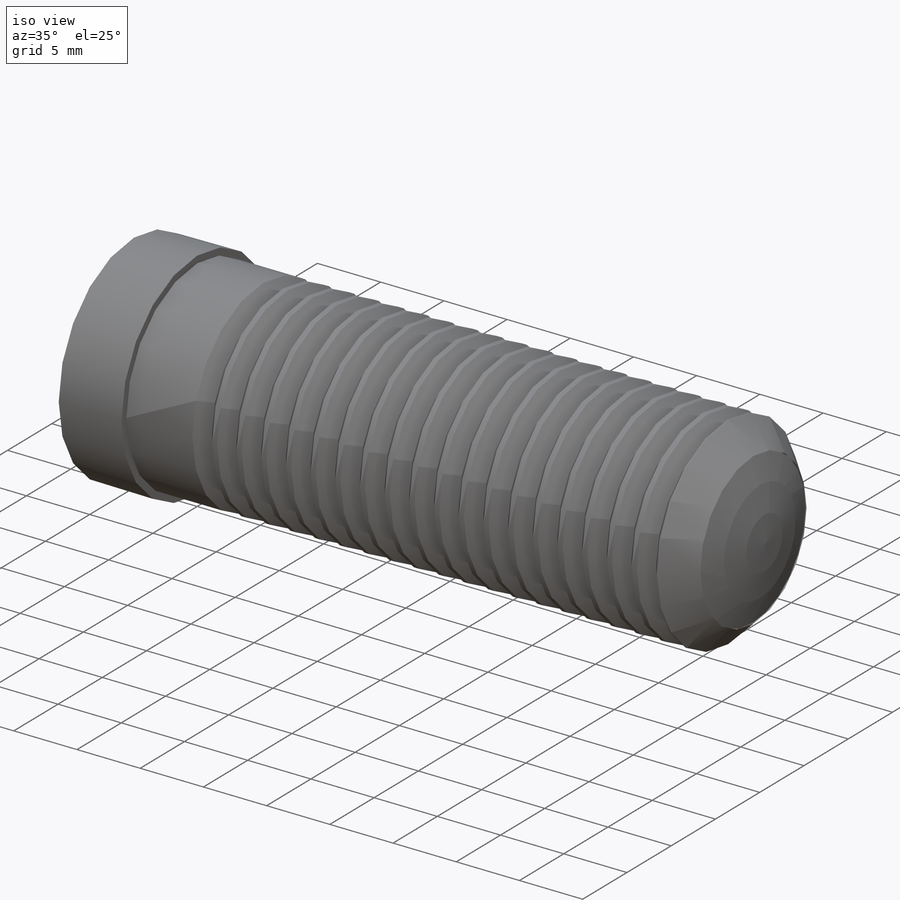
[diagram: iso view]
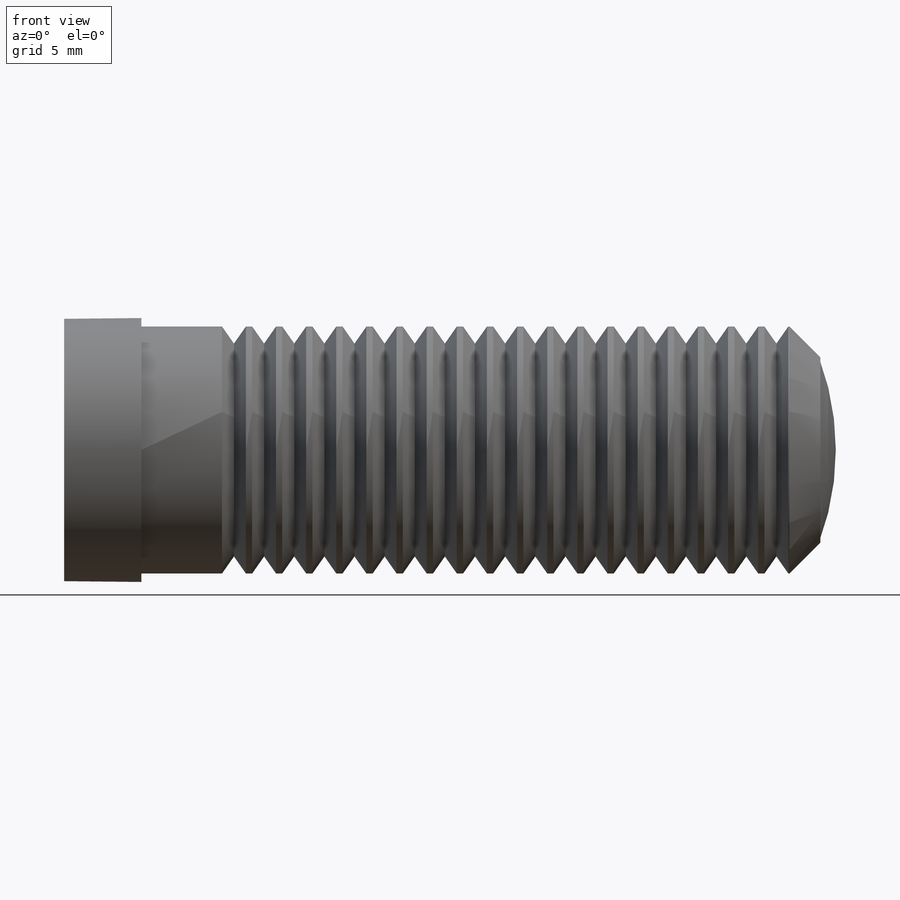
[diagram: front view]
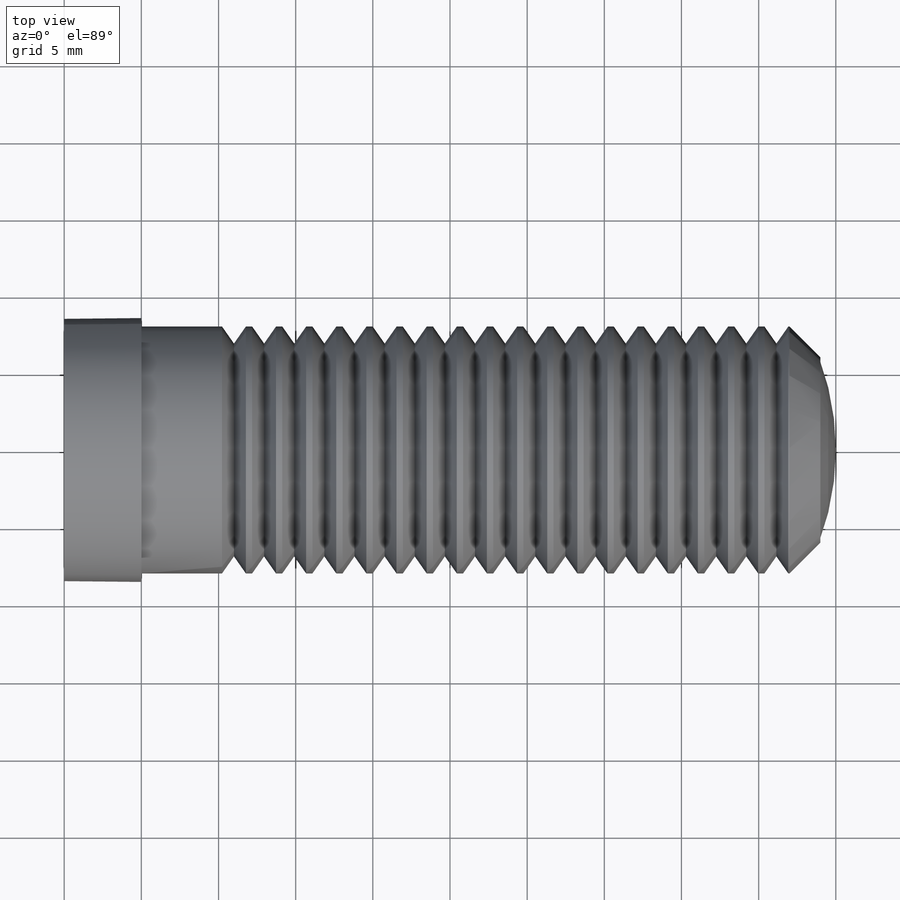
[diagram: top view]
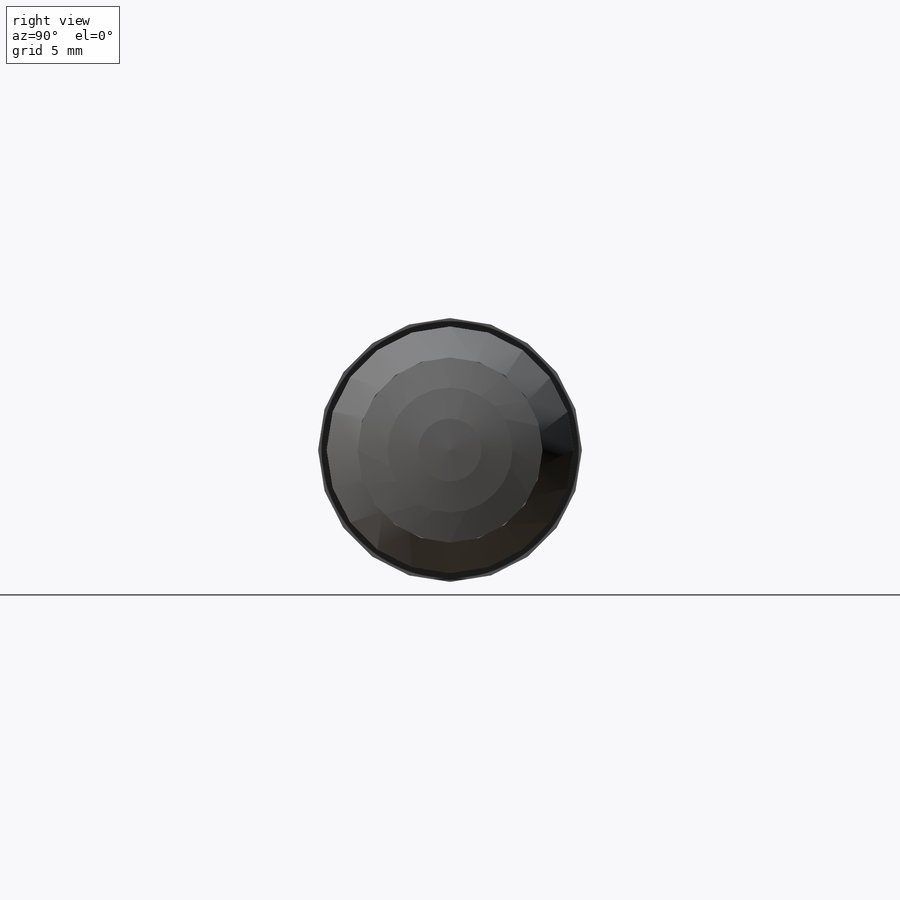
[diagram: right view]
SOLIDWORKS PART (.sldprt)
format: sldprt  version: not decoded by parser v0  size: 339,968 bytes
history: native  units: mm
features: sketch x3, material x1, revolve x1, thread x1, cut_revolve x1, pattern_linear x1, plane x1 (+15 scaffold rows collapsed; 1 parser-record rows omitted)
feature tree (25):
  parser-record x1  (decoder bookkeeping rows leaked as tree rows — omitted from the tree; the rows remain in map.json)
  scaffold x15  (default folders/planes/origin — collapsed)
  material  "Material <not specified>"
  sketch  "BodySke"  dims[c1.D1=20.0mm c1.Head_rad=17.0mm c1.Length=50.0mm c1.Diameter=17.0mm c1.Thread_dia=16.0mm c1.Thread_len=39.0mm c1.Thread_clr=6.0mm c1.Head_dia=12.0mm c1.Head_ht=1.0mm c2.D1=~28.973275mm c3.D1=135.0deg c3.D2=~83.752238mm c4.D2=~0.572939deg c4.Inset=8.0mm c4.Advance=2.0mm c5.Advance=2.0mm c5.D1=~2.828427mm c6.D1=45.0deg]
  revolve  "Body"  [1 undecoded]
  thread  "ThreadCosmetic"  Diameter=38mm Length=38mm Thread_minor=13.797mm  [1 undecoded]
  sketch  "ThdSchSke"  dims[c1.D1=~11.107481mm c2.D1=90.0deg c2.Inset=~6.300001mm c3.D1=~2.437071mm c4.D1=70.0deg c4.Thread_minor=13.797mm c4.DieOD=16.1mm c4.Inset=39.0mm c5.Inset=6.0mm]
  cut_revolve  "ThreadSchematic"  Angle=360deg
  pattern_linear  "ThdSchPat"  Count1=19 Count2=1 Spacing1=1.95271mm Spacing2=50mm Num_threads=19 Advance=1.95271mm ConfigurationName=0mm CopiedFlag=1 PartNumberID=0mm
  plane  "Plane1"  Offset=8mm
  sketch  "Sketch3"  dims[D1=1.0mm]
decode coverage: 6 of 7 modeling features carry decoded parameters
note: ~ marks probable driven/reference dimensions
note: 2 parameter values undecoded
note: suppression state not decoded; provenance and decode notes live in map.json
